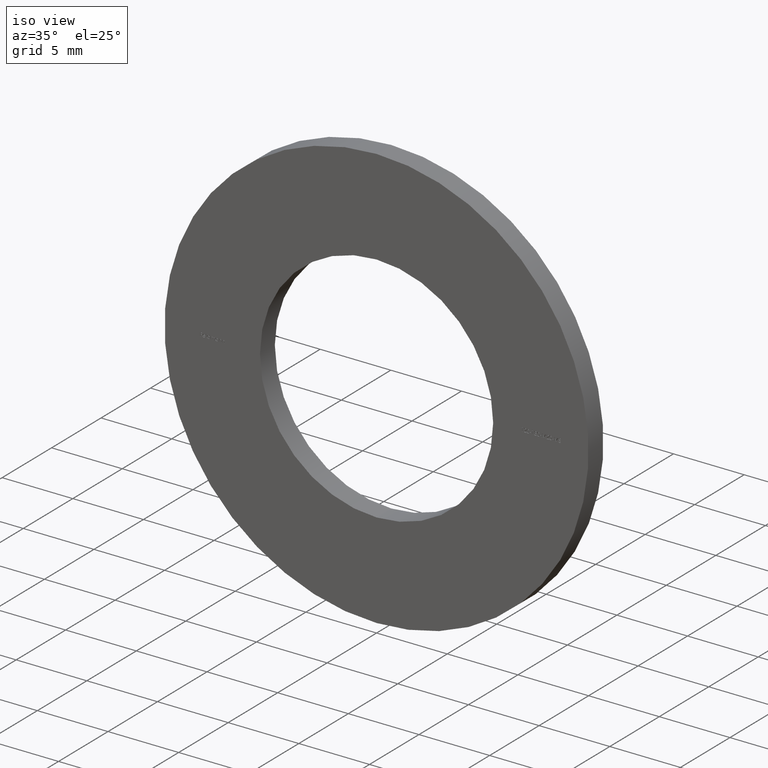
[diagram: clean part render]
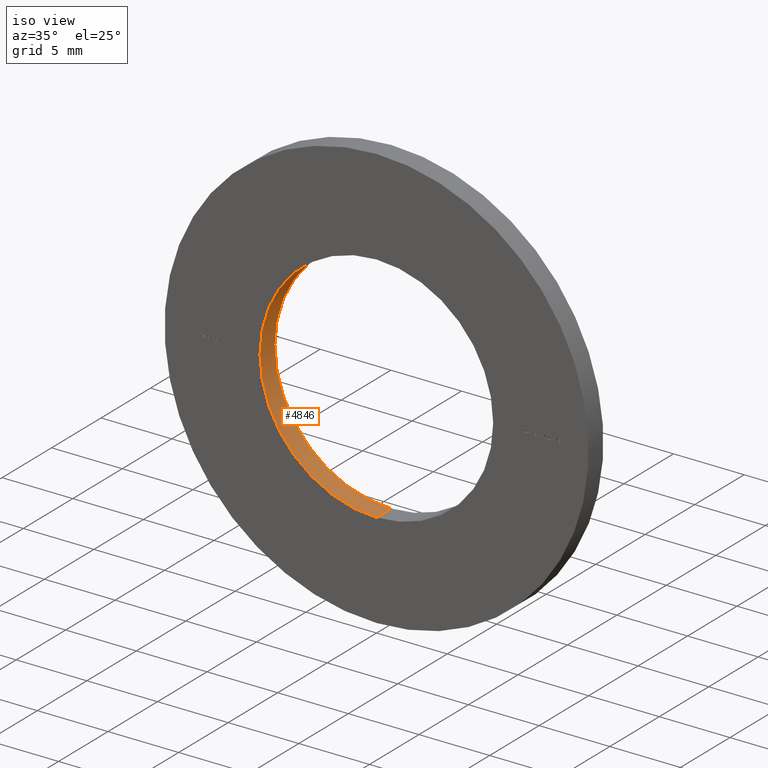
[diagram: same view with one face highlighted and labeled with its STEP entity id]
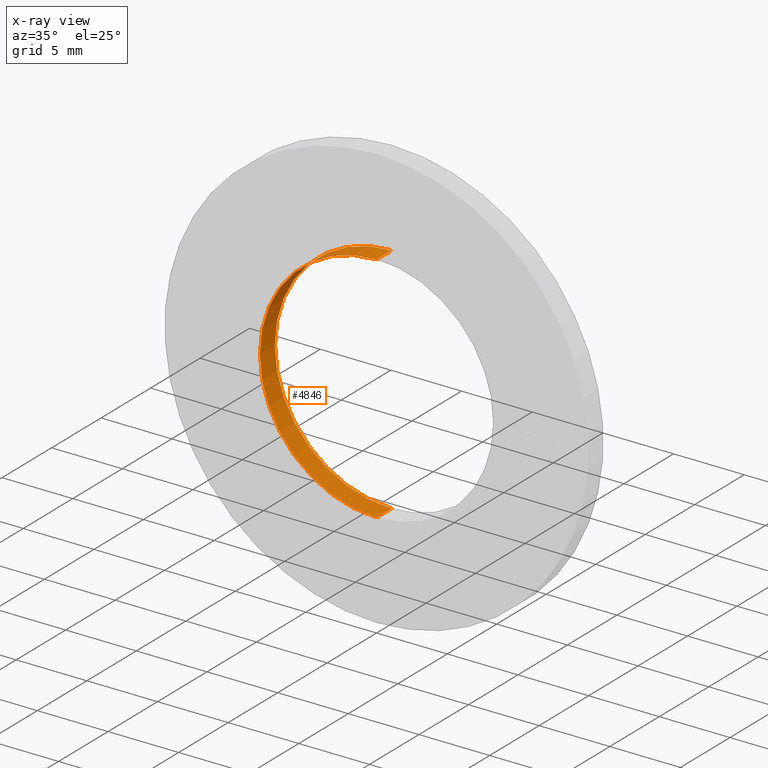
[diagram: x-ray of the same camera — body ghosted, the highlighted face saturated]
A machine part, iso view. The second image highlights one B-rep face of the part: STEP entity #4846.
The next image is the same camera in x-ray: the body ghosted, the highlighted face saturated — about 0% of this face is hidden behind the body in this view.
In plain terms, the highlighted cylindrical surface (partial cylindrical patch) has radius 8.25 mm, axis along (-0, -1, -0).
Its self-contained STEP definition (entity closure, byte-faithful):
#248 = LINE ( 'NONE', #4081, #7055 ) ;
#287 = ORIENTED_EDGE ( 'NONE', *, *, #9719, .T. ) ;
#409 = EDGE_CURVE ( 'NONE', #8608, #10111, #4907, .T. ) ;
#596 = ORIENTED_EDGE ( 'NONE', *, *, #1910, .F. ) ;
#781 = DIRECTION ( 'NONE',  ( -0.0000000000000000000, -1.000000000000000000, -0.0000000000000000000 ) ) ;
#1285 = DIRECTION ( 'NONE',  ( -0.0000000000000000000, -1.000000000000000000, -0.0000000000000000000 ) ) ;
#1291 = AXIS2_PLACEMENT_3D ( 'NONE', #7111, #1408, #9406 ) ;
#1408 = DIRECTION ( 'NONE',  ( 0.0000000000000000000, 1.000000000000000000, 0.0000000000000000000 ) ) ;
#1637 = EDGE_LOOP ( 'NONE', ( #287, #5123, #10299, #596 ) ) ;
#1910 = EDGE_CURVE ( 'NONE', #11655, #8608, #11979, .T. ) ;
#2689 = FACE_OUTER_BOUND ( 'NONE', #1637, .T. ) ;
#2865 = CARTESIAN_POINT ( 'NONE',  ( 0.0000000000000000000, 0.0000000000000000000, -8.250000000000000000 ) ) ;
#4081 = CARTESIAN_POINT ( 'NONE',  ( 1.010333609296566500E-015, 1.500000000000000000, 8.250000000000000000 ) ) ;
#4580 = DIRECTION ( 'NONE',  ( 0.0000000000000000000, 0.0000000000000000000, 1.000000000000000000 ) ) ;
#4671 = CARTESIAN_POINT ( 'NONE',  ( 0.0000000000000000000, 1.500000000000000000, 0.0000000000000000000 ) ) ;
#4846 = ADVANCED_FACE ( 'NONE', ( #2689 ), #14319, .F. ) ;
#4907 = CIRCLE ( 'NONE', #1291, 8.250000000000000000 ) ;
#5123 = ORIENTED_EDGE ( 'NONE', *, *, #12948, .T. ) ;
#5455 = AXIS2_PLACEMENT_3D ( 'NONE', #4671, #5817, #4580 ) ;
#5817 = DIRECTION ( 'NONE',  ( 0.0000000000000000000, 1.000000000000000000, 0.0000000000000000000 ) ) ;
#7055 = VECTOR ( 'NONE', #781, 1000.000000000000000 ) ;
#7111 = CARTESIAN_POINT ( 'NONE',  ( 0.0000000000000000000, 0.0000000000000000000, 0.0000000000000000000 ) ) ;
#7314 = CARTESIAN_POINT ( 'NONE',  ( 0.0000000000000000000, 1.500000000000000000, -8.250000000000000000 ) ) ;
#7707 = CIRCLE ( 'NONE', #5455, 8.250000000000000000 ) ;
#8608 = VERTEX_POINT ( 'NONE', #2865 ) ;
#9406 = DIRECTION ( 'NONE',  ( 0.0000000000000000000, 0.0000000000000000000, 1.000000000000000000 ) ) ;
#9650 = VECTOR ( 'NONE', #13091, 1000.000000000000000 ) ;
#9719 = EDGE_CURVE ( 'NONE', #11655, #14692, #7707, .T. ) ;
#10111 = VERTEX_POINT ( 'NONE', #13623 ) ;
#10299 = ORIENTED_EDGE ( 'NONE', *, *, #409, .F. ) ;
#10510 = CARTESIAN_POINT ( 'NONE',  ( 1.010333609296566500E-015, 1.500000000000000000, 8.250000000000000000 ) ) ;
#11655 = VERTEX_POINT ( 'NONE', #12367 ) ;
#11735 = CARTESIAN_POINT ( 'NONE',  ( 0.0000000000000000000, 1.500000000000000000, 0.0000000000000000000 ) ) ;
#11979 = LINE ( 'NONE', #7314, #9650 ) ;
#12367 = CARTESIAN_POINT ( 'NONE',  ( 0.0000000000000000000, 1.500000000000000000, -8.250000000000000000 ) ) ;
#12948 = EDGE_CURVE ( 'NONE', #14692, #10111, #248, .T. ) ;
#13091 = DIRECTION ( 'NONE',  ( -0.0000000000000000000, -1.000000000000000000, -0.0000000000000000000 ) ) ;
#13623 = CARTESIAN_POINT ( 'NONE',  ( 1.010333609296566500E-015, 0.0000000000000000000, 8.250000000000000000 ) ) ;
#13990 = DIRECTION ( 'NONE',  ( 0.0000000000000000000, 0.0000000000000000000, -1.000000000000000000 ) ) ;
#14072 = AXIS2_PLACEMENT_3D ( 'NONE', #11735, #1285, #13990 ) ;
#14319 = CYLINDRICAL_SURFACE ( 'NONE', #14072, 8.250000000000000000 ) ;
#14692 = VERTEX_POINT ( 'NONE', #10510 ) ;